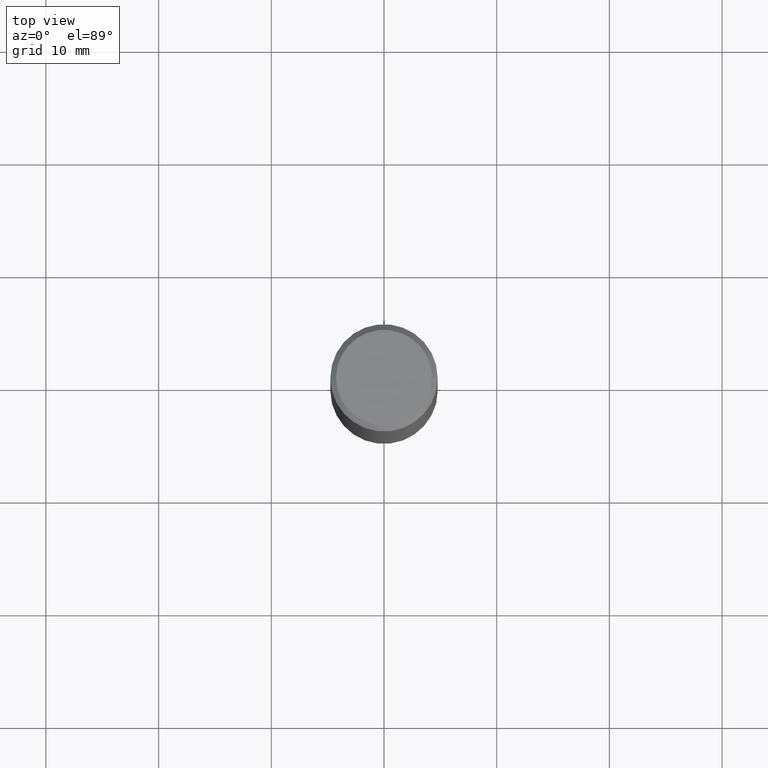
[diagram: clean part render]
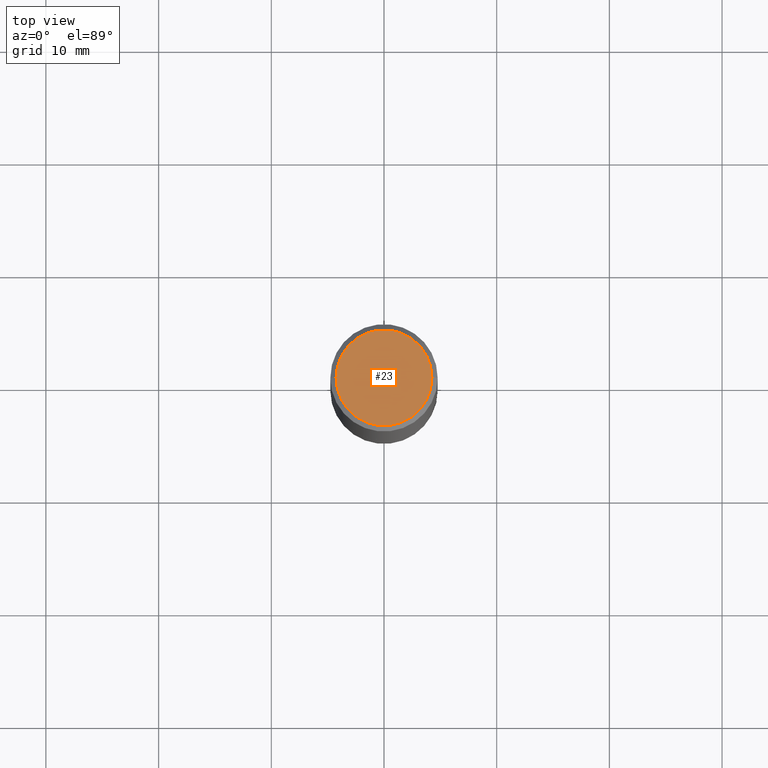
[diagram: same view with one face highlighted and labeled with its STEP entity id]
A machine part, top view. The second image highlights one B-rep face of the part: STEP entity #23.
In plain terms, the highlighted planar face has unit normal (0, -0, -1).
Its self-contained STEP definition (entity closure, byte-faithful):
#23 = ADVANCED_FACE ( 'NONE', ( #307 ), #117, .F. ) ;
#40 = CARTESIAN_POINT ( 'NONE',  ( 0.000000000000000000, 0.000000000000000000, 0.000000000000000000 ) ) ;
#46 = DIRECTION ( 'NONE',  ( 1.000000000000000000, -6.982962677686265922E-15, 4.876176775795935793E-29 ) ) ;
#47 = VERTEX_POINT ( 'NONE', #256 ) ;
#49 = AXIS2_PLACEMENT_3D ( 'NONE', #40, #58, #262 ) ;
#58 = DIRECTION ( 'NONE',  ( -2.445468806185136597E-29, 3.491481338843145583E-15, 1.000000000000000000 ) ) ;
#61 = AXIS2_PLACEMENT_3D ( 'NONE', #282, #231, #81 ) ;
#69 = DIRECTION ( 'NONE',  ( -2.445468806185136597E-29, 3.491481338843145583E-15, 1.000000000000000000 ) ) ;
#81 = DIRECTION ( 'NONE',  ( -1.000000000000000000, 6.982962677686265922E-15, -4.876176775795935793E-29 ) ) ;
#84 = VERTEX_POINT ( 'NONE', #178 ) ;
#97 = EDGE_CURVE ( 'NONE', #47, #84, #293, .T. ) ;
#117 = PLANE ( 'NONE',  #61 ) ;
#178 = CARTESIAN_POINT ( 'NONE',  ( -0.1674999999999997602, 1.204561061900878878E-15, -8.301862719484099178E-30 ) ) ;
#211 = CARTESIAN_POINT ( 'NONE',  ( 0.000000000000000000, 0.000000000000000000, 0.000000000000000000 ) ) ;
#216 = CIRCLE ( 'NONE', #244, 0.1674999999999997602 ) ;
#231 = DIRECTION ( 'NONE',  ( 2.438088387897960049E-29, -3.491481338843145188E-15, -1.000000000000000000 ) ) ;
#244 = AXIS2_PLACEMENT_3D ( 'NONE', #211, #69, #46 ) ;
#247 = EDGE_CURVE ( 'NONE', #84, #47, #216, .T. ) ;
#253 = EDGE_LOOP ( 'NONE', ( #313, #289 ) ) ;
#256 = CARTESIAN_POINT ( 'NONE',  ( 0.1674999999999997602, -1.252653207992876711E-15, 8.469775550109228175E-30 ) ) ;
#262 = DIRECTION ( 'NONE',  ( 1.000000000000000000, -6.982962677686265922E-15, 4.876176775795935793E-29 ) ) ;
#282 = CARTESIAN_POINT ( 'NONE',  ( 1.169646248512447820E-15, 0.1674999999999997602, -5.848231242562259809E-16 ) ) ;
#289 = ORIENTED_EDGE ( 'NONE', *, *, #97, .T. ) ;
#293 = CIRCLE ( 'NONE', #49, 0.1674999999999997602 ) ;
#307 = FACE_OUTER_BOUND ( 'NONE', #253, .T. ) ;
#313 = ORIENTED_EDGE ( 'NONE', *, *, #247, .T. ) ;